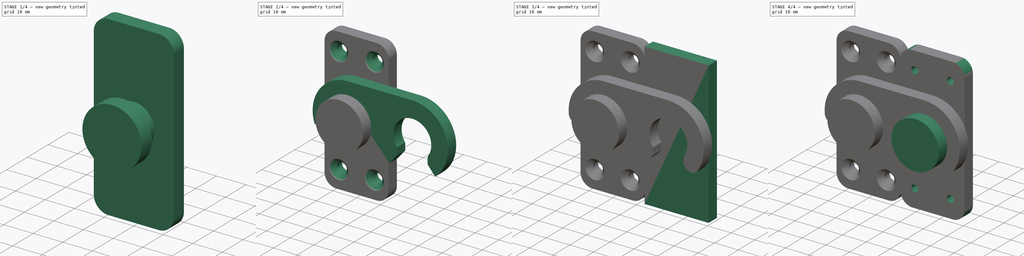
[diagram: build sequence overview — one tinted view per stage of 4, left to right]
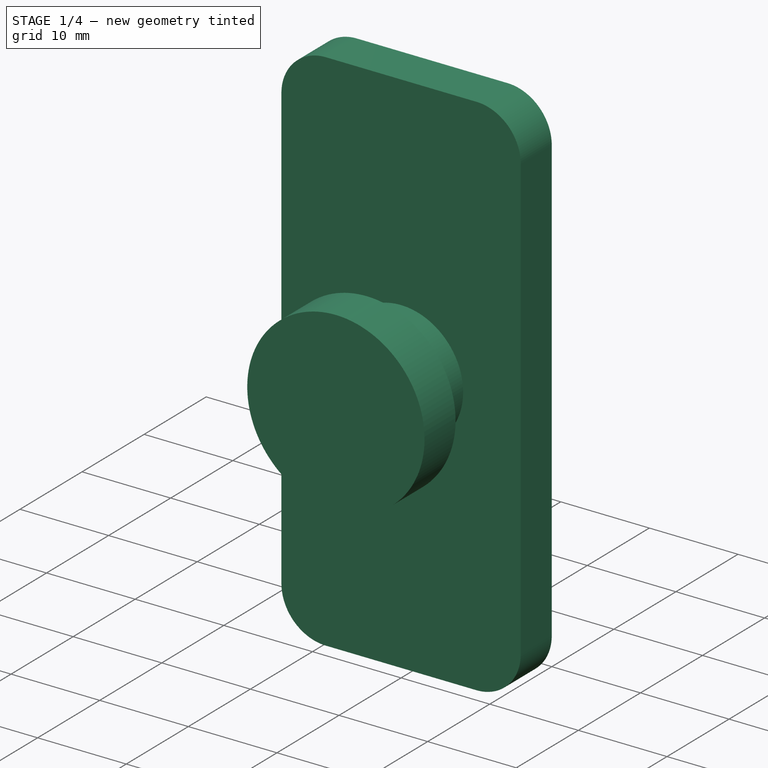
[diagram: stage 1 of 4 — iso view after this stage's code; geometry added in this stage tinted green]
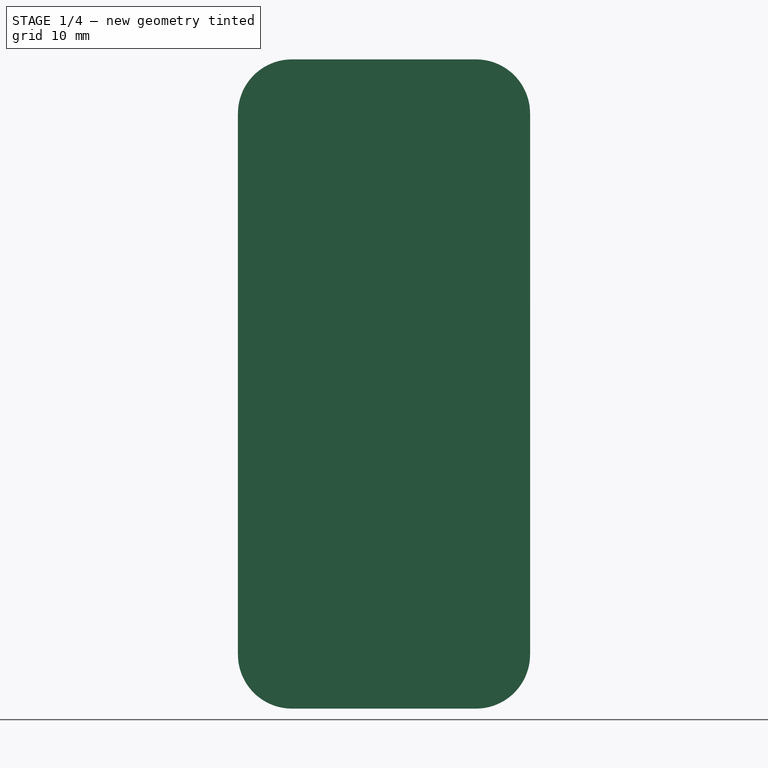
[diagram: stage 1 of 4 — front view after this stage's code; geometry added in this stage tinted green]
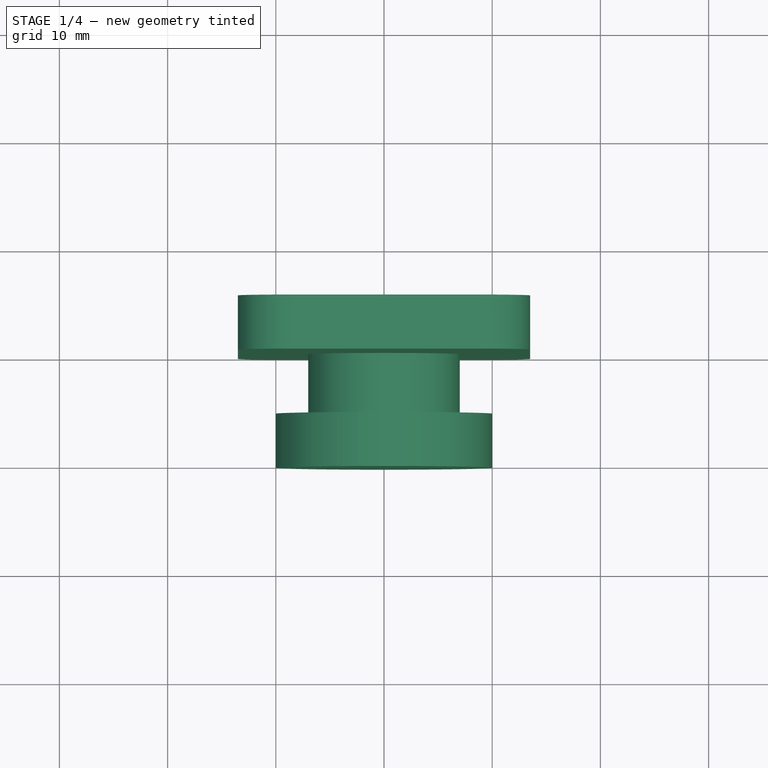
[diagram: stage 1 of 4 — top view after this stage's code; geometry added in this stage tinted green]
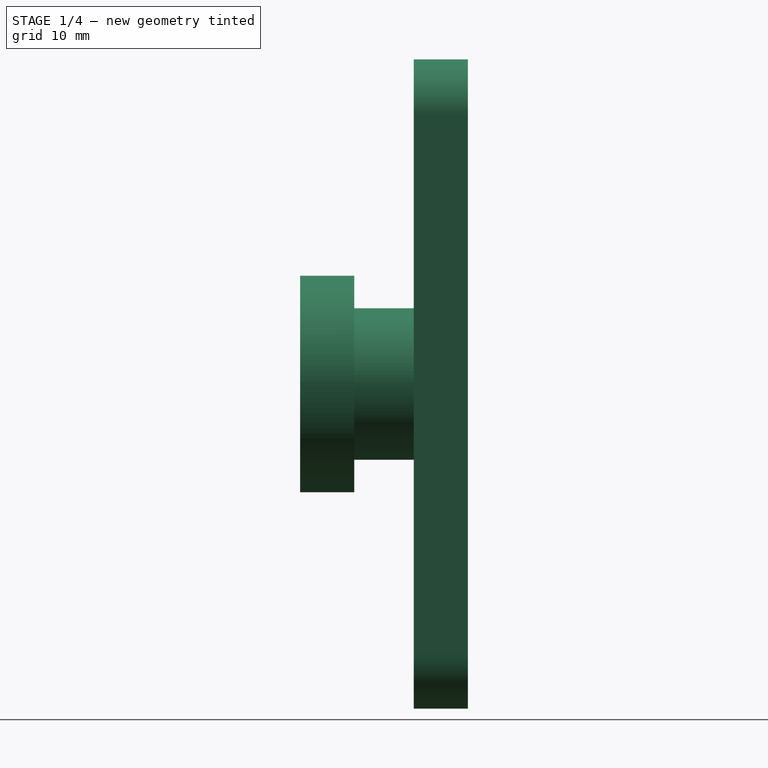
[diagram: stage 1 of 4 — right view after this stage's code; geometry added in this stage tinted green]
FCSTD DOCUMENT  (FreeCAD 0.21R33668 +26 (Git))
Label: printer_chamber_door_lock
License: All rights reserved
LicenseURL: https://en.wikipedia.org/wiki/All_rights_reserved
objects: Sketcher::SketchObject×7, PartDesign::Pad×3, PartDesign::Fillet×3, PartDesign::Body×3, PartDesign::Revolution×2, PartDesign::Pocket×1, PartDesign::Chamfer×1, PartDesign::Hole×1
note: 32 computed .brp shape members not serialized (recipe doc carries the construction recipe); baked Part::Feature solids carry a one-line shape summary decoded from their .brp

FEATURE [Sketcher::SketchObject] Sketch
  FullyConstrained = true
  MapMode = 5
  Placement = pos=(0,0,0) rot=(1,0,0;1.5708rad)
  Support = -> [XZ_Plane]
  sketch-geometry (5):
    g0: LineSegment StartX=-13.5 StartY=-30 StartZ=0 EndX=-13.5 EndY=30 EndZ=0
    g1: LineSegment StartX=-13.5 StartY=30 StartZ=0 EndX=13.5 EndY=30 EndZ=0
    g2: LineSegment StartX=13.5 StartY=30 StartZ=0 EndX=13.5 EndY=-30 EndZ=0
    g3: LineSegment StartX=13.5 StartY=-30 StartZ=0 EndX=-13.5 EndY=-30 EndZ=0
    g4: GeomPoint X=0 Y=0 Z=0
  constraints (12):
    c: Coincident(g0,g1)
    c: Coincident(g1,g2)
    c: Coincident(g2,g3)
    c: Coincident(g3,g0)
    c: Horizontal(g1)
    c: Horizontal(g3)
    c: Vertical(g0)
    c: Vertical(g2)
    c: Symmetric(g1,g0,g4)
    c: Coincident(g4,g-1)
    c: DistanceX(g1,g1) = 27
    c: DistanceY(g2,g2) = 60
FEATURE [PartDesign::Pad] Pad
  Direction = (0,-1,-2e-16)
  Length = 5
  Length2 = 10
  Placement = pos=(0,0,0) rot=(1,0,0;1.5708rad)
  Profile = -> Sketch
  ReferenceAxis = -> Sketch [N_Axis]
  Reversed = true
  Type = 0
FEATURE [Sketcher::SketchObject] Sketch001
  FullyConstrained = true
  MapMode = 5
  Placement = pos=(0,0,0) rot=(1,0,0;1.5708rad)
  Support = -> [XZ_Plane]
  sketch-geometry (4):
    g0: Circle CenterX=-7.5 CenterY=22.5 CenterZ=0 NormalX=0 NormalY=0 NormalZ=1 AngleXU=0 Radius=1.5
    g1: Circle CenterX=7.5 CenterY=22.5 CenterZ=0 NormalX=0 NormalY=0 NormalZ=1 AngleXU=0 Radius=1.5
    g2: Circle CenterX=-7.5 CenterY=-22.5 CenterZ=0 NormalX=0 NormalY=0 NormalZ=1 AngleXU=0 Radius=1.5
    g3: Circle CenterX=7.5 CenterY=-22.5 CenterZ=0 NormalX=0 NormalY=0 NormalZ=1 AngleXU=0 Radius=1.5
  constraints (10):
    c: Symmetric(g0,g2,g-1)
    c: Vertical(g1,g3)
    c: Horizontal(g3,g2)
    c: Equal(g0,g1)
    c: Equal(g1,g3)
    c: Equal(g3,g2)
    c: Diameter(g0) = 3
    c: DistanceX(g0,g1) = 15
    c: DistanceY(g2,g0) = 45
    c: Symmetric(g1,g0,g-2)
FEATURE [Sketcher::SketchObject] Sketch002
  FullyConstrained = true
  MapMode = 5
  Placement = pos=(0,0,0) rot=(0.57735,0.57735,0.57735;2.0944rad)
  Support = -> [YZ_Plane]
  sketch-geometry (6):
    g0: LineSegment StartX=0 StartY=-7 StartZ=0 EndX=-5.5 EndY=-7 EndZ=0
    g1: LineSegment StartX=-5.5 StartY=-7 StartZ=0 EndX=-5.5 EndY=-10 EndZ=0
    g2: LineSegment StartX=-5.5 StartY=-10 StartZ=0 EndX=-10.5 EndY=-10 EndZ=0
    g3: LineSegment StartX=-10.5 StartY=-10 StartZ=0 EndX=-10.5 EndY=0 EndZ=0
    g4: LineSegment StartX=0 StartY=-7 StartZ=0 EndX=0 EndY=0 EndZ=0
    g5: LineSegment StartX=-10.5 StartY=0 StartZ=0 EndX=0 EndY=0 EndZ=0
  constraints (18):
    c: PointOnObject(g0,g-2)
    c: Horizontal(g0)
    c: Coincident(g2,g1)
    c: Coincident(g3,g2)
    c: Vertical(g3)
    c: PointOnObject(g3,g-1)
    c: Coincident(g1,g0)
    c: Vertical(g1)
    c: Horizontal(g2)
    c: DistanceY(g0,g-1) = 7
    c: DistanceY(g3,g3) = 10
    c: DistanceX(g0,g0) = 5.5
    c: DistanceX(g2,g2) = 5
    c: Coincident(g4,g0)
    c: Coincident(g4,g-1)
    c: Coincident(g5,g3)
    c: PointOnObject(g5,g4)
    c: Horizontal(g5)
FEATURE [PartDesign::Revolution] Revolution
  Angle = 360
  Axis = (3e-16,1,-2e-16)
  Base = (0,0,0)
  BaseFeature = -> Pad
  Placement = pos=(0,0,0) rot=(1,0,0;1.5708rad)
  Profile = -> Sketch002
  ReferenceAxis = -> Sketch002 [H_Axis]
  Reversed = true
FEATURE [PartDesign::Fillet] Fillet
  Base = -> Revolution [Edge2,Edge8,Edge1,Edge5]
  BaseFeature = -> Revolution
  Placement = pos=(0,0,0) rot=(1,0,0;1.5708rad)
  Radius = 5
  SupportTransform = false
  UseAllEdges = false
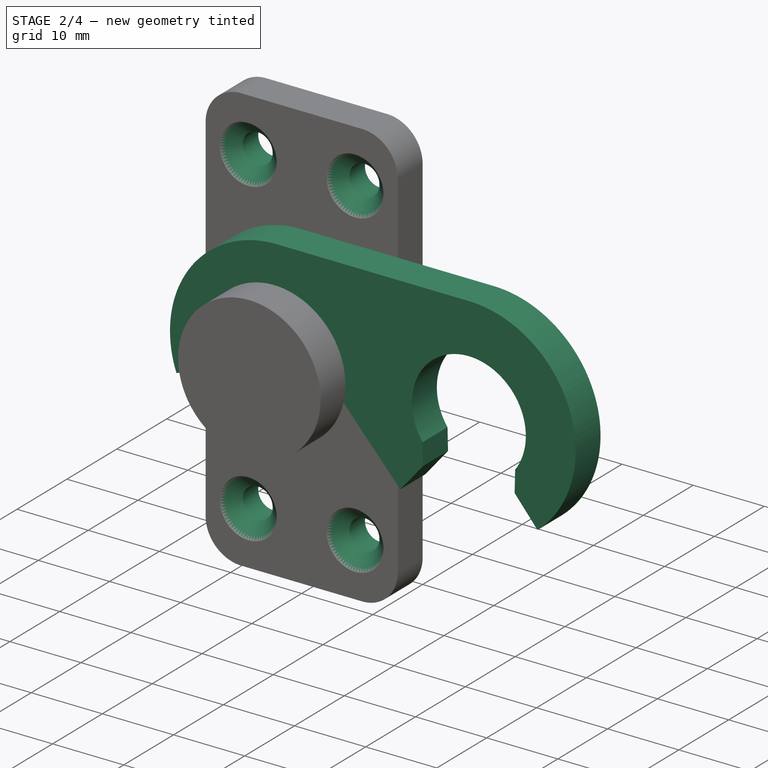
[diagram: stage 2 of 4 — iso view after this stage's code; geometry added in this stage tinted green]
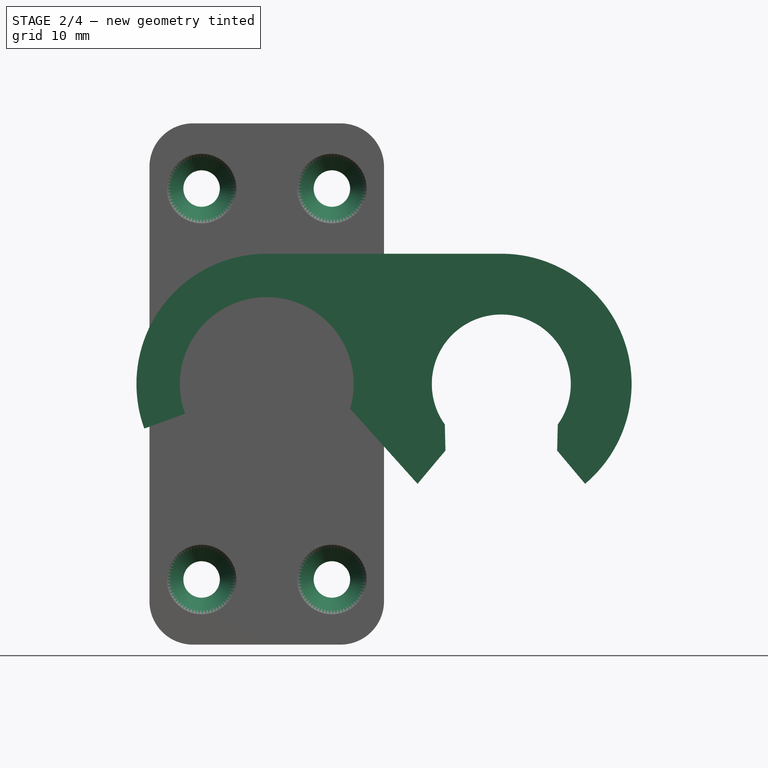
[diagram: stage 2 of 4 — front view after this stage's code; geometry added in this stage tinted green]
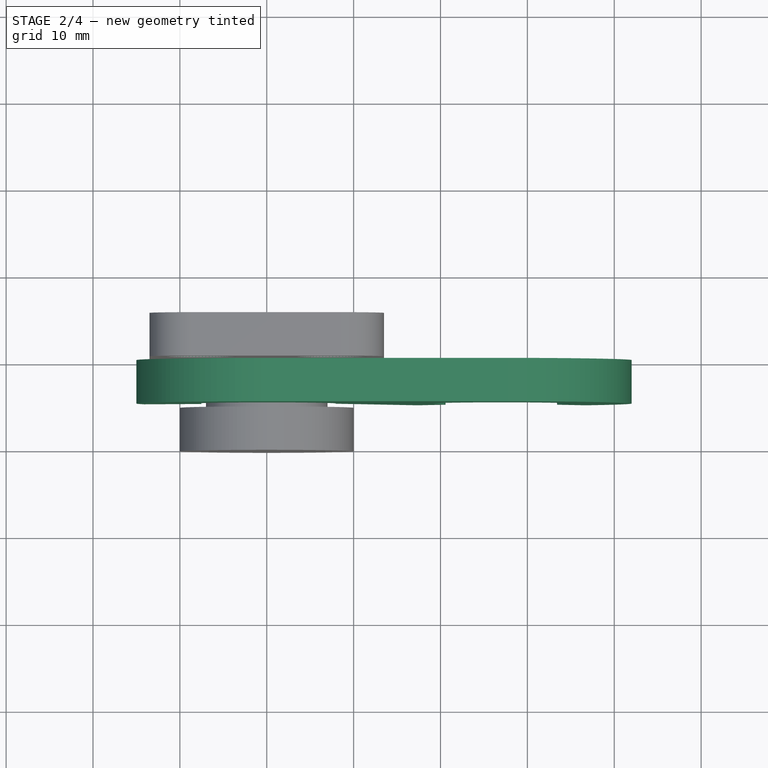
[diagram: stage 2 of 4 — top view after this stage's code; geometry added in this stage tinted green]
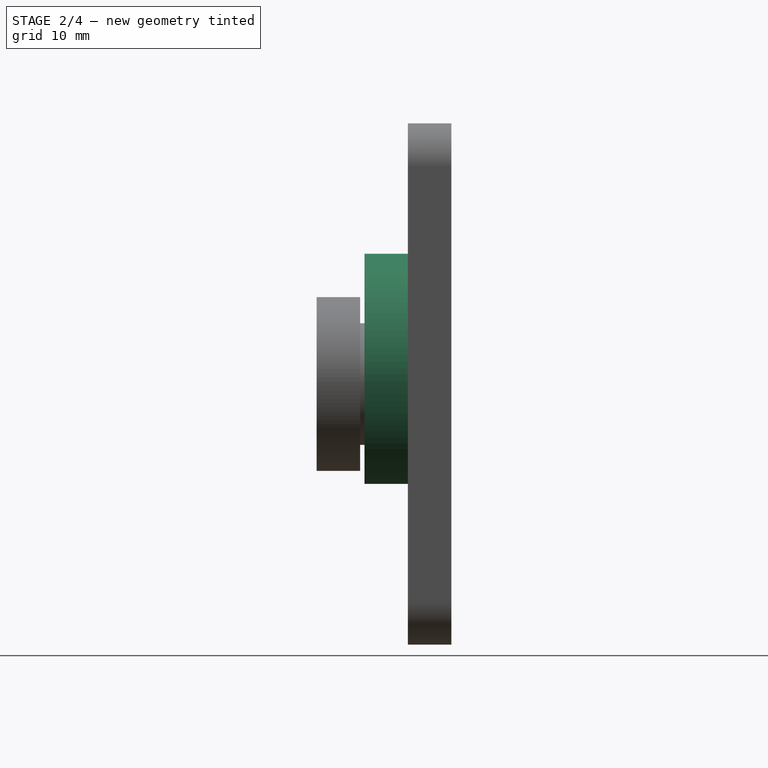
[diagram: stage 2 of 4 — right view after this stage's code; geometry added in this stage tinted green]
FEATURE [PartDesign::Body] Body001
  Group = -> [Sketch003,Pad001,Sketch004,Pocket001,Sketch005,Revolution001,Fillet001]
  Origin = -> Origin001
  Tip = -> Fillet001
FEATURE [Sketcher::SketchObject] Sketch006
  FullyConstrained = true
  MapMode = 5
  Placement = pos=(0,0,0) rot=(1,0,0;1.5708rad)
  Support = -> [XZ_Plane002]
  sketch-geometry (10):
    g0: ArcOfCircle CenterX=0 CenterY=0 CenterZ=0 NormalX=0 NormalY=0 NormalZ=1 AngleXU=0 Radius=8 StartAngle=6.15786 EndAngle=9.77384
    g1: ArcOfCircle CenterX=27 CenterY=-6e-16 CenterZ=0 NormalX=0 NormalY=0 NormalZ=1 AngleXU=0 Radius=8 StartAngle=5.41052 EndAngle=10.2974
    g2: ArcOfCircle CenterX=27 CenterY=-6e-16 CenterZ=0 NormalX=0 NormalY=0 NormalZ=1 AngleXU=0 Radius=15 StartAngle=5.41052 EndAngle=7.85398
    g3: ArcOfCircle CenterX=0 CenterY=0 CenterZ=0 NormalX=0 NormalY=0 NormalZ=1 AngleXU=0 Radius=15 StartAngle=1.5708 EndAngle=3.49066
    g4: LineSegment StartX=-1.8e-15 StartY=15 StartZ=0 EndX=27 EndY=15 EndZ=0
    g5: LineSegment StartX=7.93725 StartY=-1 StartZ=0 EndX=17.3582 EndY=-11.4907 EndZ=0
    g6: LineSegment StartX=32.1423 StartY=-6.12836 StartZ=0 EndX=36.6418 EndY=-11.4907 EndZ=0
    g7: LineSegment StartX=21.8577 StartY=-6.12836 StartZ=0 EndX=17.3582 EndY=-11.4907 EndZ=0
    g8: LineSegment StartX=-7.51754 StartY=-2.73616 StartZ=0 EndX=-14.0954 EndY=-5.1303 EndZ=0
    g9: LineSegment StartX=27 StartY=-6e-16 StartZ=0 EndX=27 EndY=-11.4907 EndZ=0
  constraints (28):
    c: Coincident(g0,g-1)
    c: DistanceX(g0,g1) = 27
    c: Diameter(g1) = 16
    c: Diameter(g0) = 16
    c: Coincident(g2,g1)
    c: Coincident(g3,g0)
    c: Equal(g3,g2)
    c: Horizontal(g4)
    c: Diameter(g2) = 30
    c: DistanceY(g5,g-1) = 1
    c: Angle(g7,g6) = 1.39626
    c: Angle(g-2,g8) = 1.91986
    c: Coincident(g2,g6)
    c: Coincident(g6,g1)
    c: Coincident(g7,g1)
    c: Coincident(g3,g8)
    c: Coincident(g8,g0)
    c: Coincident(g5,g0)
    c: Perpendicular(g0,g8)
    c: Perpendicular(g1,g6)
    c: Perpendicular(g1,g7)
    c: Tangent(g2,g4) = 1.5708
    c: Tangent(g3,g4) = 1.5708
    c: Coincident(g7,g5)
    c: Coincident(g9,g1)
    c: Vertical(g9)
    c: Symmetric(g2,g5,g9)
    c: Horizontal(g9,g2)
FEATURE [PartDesign::Pad] Pad002
  Direction = (0,-1,2e-16)
  Length = 5
  Length2 = 10
  Placement = pos=(0,0,0) rot=(1,0,0;1.5708rad)
  Profile = -> Sketch006
  ReferenceAxis = -> Sketch006 [N_Axis]
  Type = 0
FEATURE [PartDesign::Chamfer] Chamfer
  Angle = 45
  Base = -> Pad002 [Edge2,Edge1]
  BaseFeature = -> Pad002
  ChamferType = 0
  FlipDirection = false
  Placement = pos=(0,0,0) rot=(1,0,0;1.5708rad)
  Size = 2
  Size2 = 1
  SupportTransform = false
  UseAllEdges = false
FEATURE [PartDesign::Body] Body002
  Group = -> [Sketch006,Pad002,Chamfer,Fillet002]
  Origin = -> Origin002
  Tip = -> Fillet002
FEATURE [PartDesign::Hole] Hole
  BaseFeature = -> Fillet
  CustomThreadClearance = 0
  Depth = 25
  DepthType = 0
  Diameter = 4.2
  DrillForDepth = false
  DrillPoint = 1
  DrillPointAngle = 118
  HoleCutCountersinkAngle = 90
  HoleCutCustomValues = false
  HoleCutDepth = 3
  HoleCutDiameter = 8
  HoleCutType = 2
  ModelThread = false
  Placement = pos=(0,0,0) rot=(1,0,0;1.5708rad)
  Profile = -> Sketch001
  Tapered = false
  TaperedAngle = 90
  ThreadClass = 0
  ThreadDepth = 25
  ThreadDepthType = 0
  ThreadDirection = 0
  ThreadFit = 0
  ThreadSize = 0
  ThreadType = 0
  Threaded = false
  UseCustomThreadClearance = false
FEATURE [PartDesign::Body] Body
  Group = -> [Sketch,Pad,Sketch001,Sketch002,Revolution,Fillet,Hole]
  Origin = -> Origin
  Tip = -> Hole
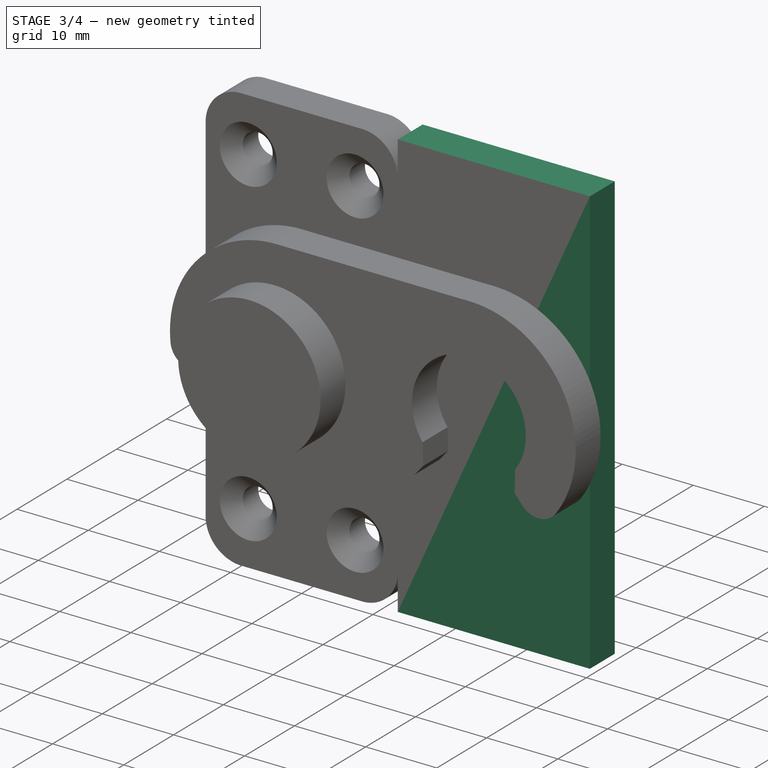
[diagram: stage 3 of 4 — iso view after this stage's code; geometry added in this stage tinted green]
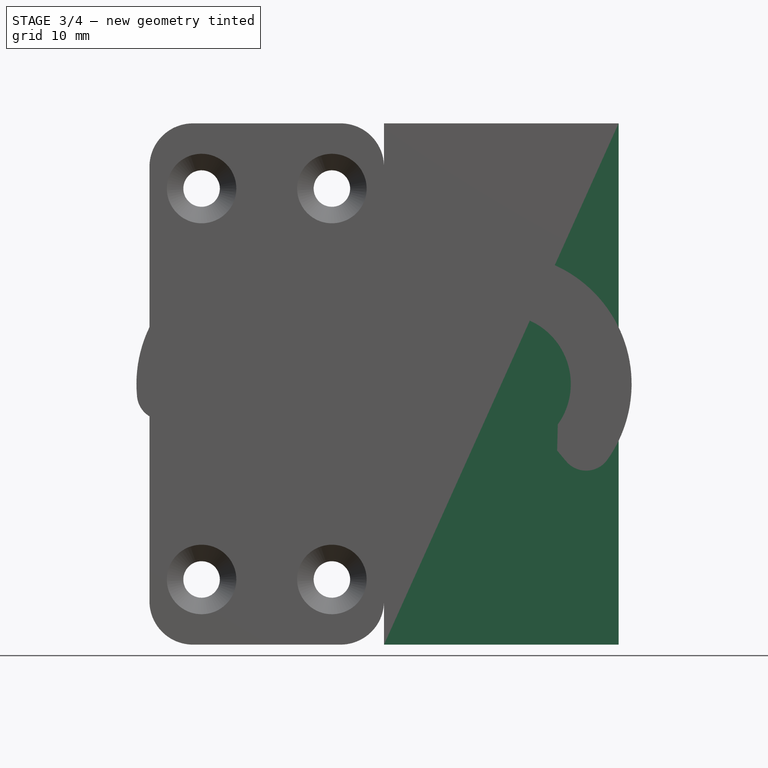
[diagram: stage 3 of 4 — front view after this stage's code; geometry added in this stage tinted green]
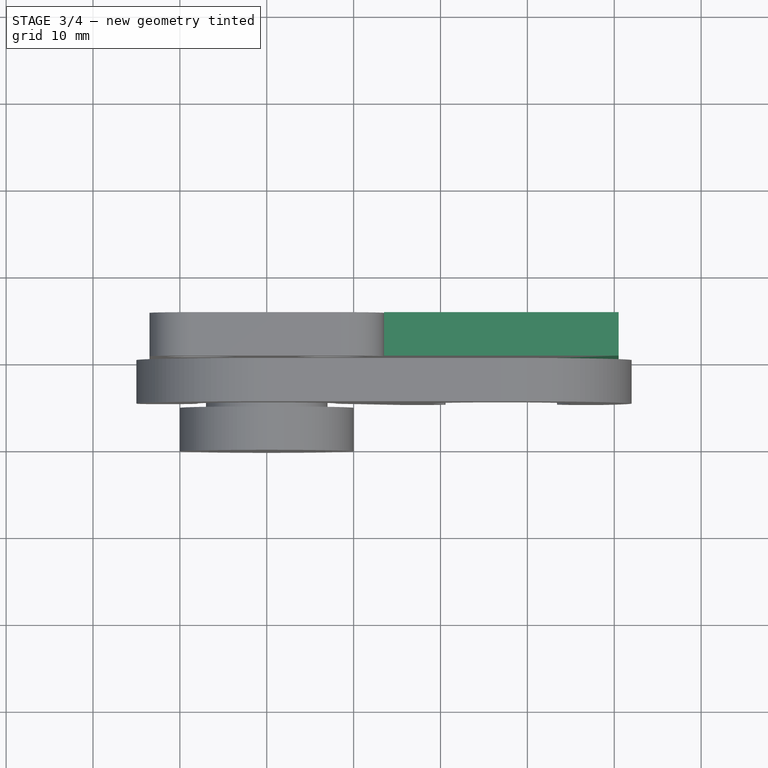
[diagram: stage 3 of 4 — top view after this stage's code; geometry added in this stage tinted green]
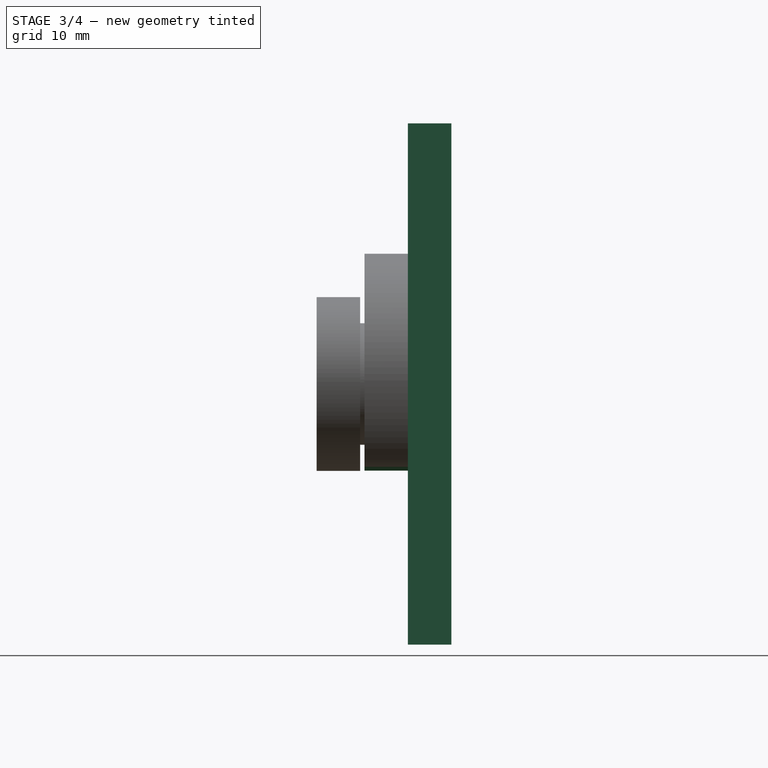
[diagram: stage 3 of 4 — right view after this stage's code; geometry added in this stage tinted green]
FEATURE [Sketcher::SketchObject] Sketch003
  FullyConstrained = true
  MapMode = 5
  Placement = pos=(0,0,0) rot=(1,0,0;1.5708rad)
  Support = -> [XZ_Plane001]
  sketch-geometry (5):
    g0: LineSegment StartX=13.5 StartY=-30 StartZ=0 EndX=13.5 EndY=30 EndZ=0
    g1: LineSegment StartX=13.5 StartY=30 StartZ=0 EndX=40.5 EndY=30 EndZ=0
    g2: LineSegment StartX=40.5 StartY=30 StartZ=0 EndX=40.5 EndY=-30 EndZ=0
    g3: LineSegment StartX=40.5 StartY=-30 StartZ=0 EndX=13.5 EndY=-30 EndZ=0
    g4: GeomPoint X=27 Y=0 Z=0
  constraints (13):
    c: Coincident(g0,g1)
    c: Coincident(g1,g2)
    c: Coincident(g2,g3)
    c: Coincident(g3,g0)
    c: Horizontal(g1)
    c: Horizontal(g3)
    c: Vertical(g0)
    c: Vertical(g2)
    c: Symmetric(g1,g0,g4)
    c: PointOnObject(g4,g-1)
    c: DistanceX(g-1,g0) = 13.5
    c: DistanceY(g2,g2) = 60
    c: DistanceX(g1,g1) = 27
FEATURE [PartDesign::Pad] Pad001
  Direction = (0,-1,2e-16)
  Length = 5
  Length2 = 10
  Placement = pos=(0,0,0) rot=(1,0,0;1.5708rad)
  Profile = -> Sketch003
  ReferenceAxis = -> Sketch003 [N_Axis]
  Reversed = true
  Type = 0
FEATURE [PartDesign::Fillet] Fillet002
  Base = -> Chamfer [Edge28,Edge33,Edge32,Edge27,Edge30]
  BaseFeature = -> Chamfer
  Placement = pos=(0,0,0) rot=(1,0,0;1.5708rad)
  Radius = 3
  SupportTransform = false
  UseAllEdges = false
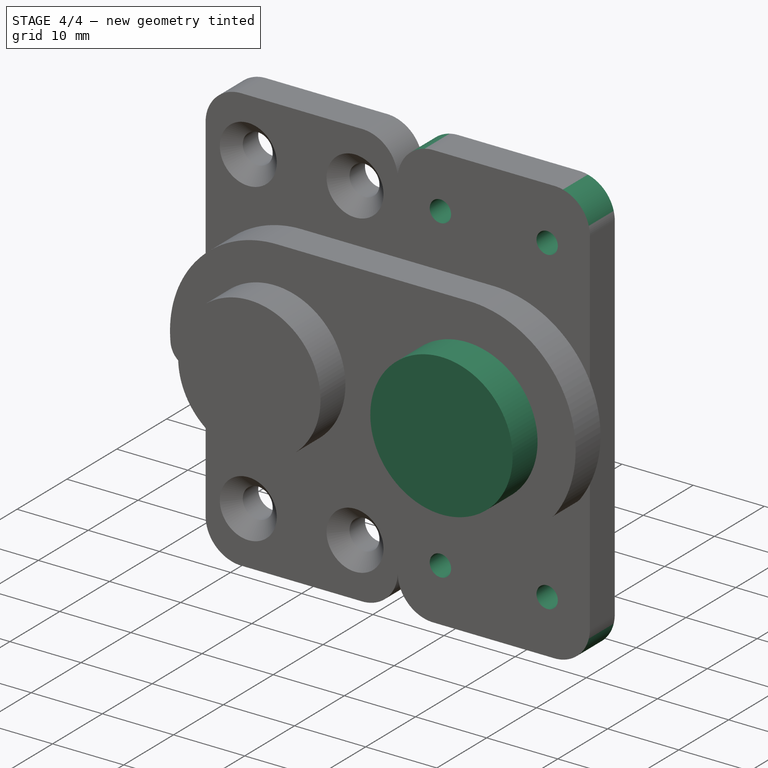
[diagram: stage 4 of 4 — iso view after this stage's code; geometry added in this stage tinted green]
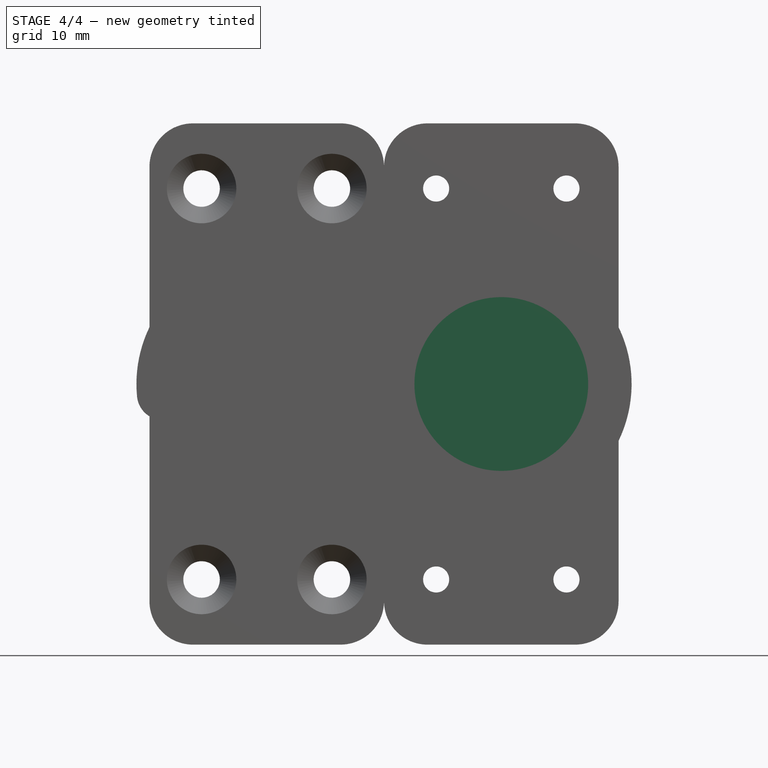
[diagram: stage 4 of 4 — front view after this stage's code; geometry added in this stage tinted green]
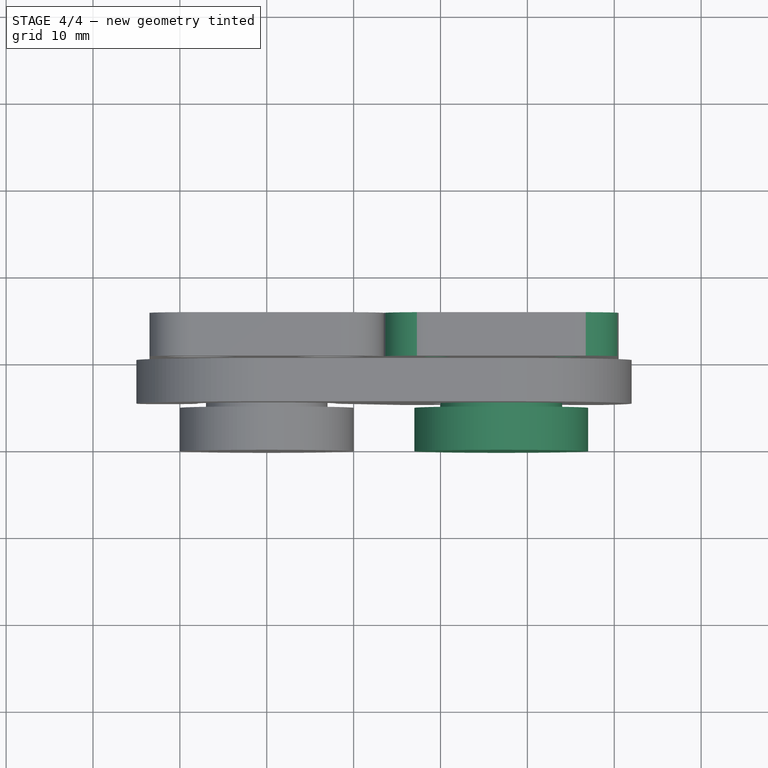
[diagram: stage 4 of 4 — top view after this stage's code; geometry added in this stage tinted green]
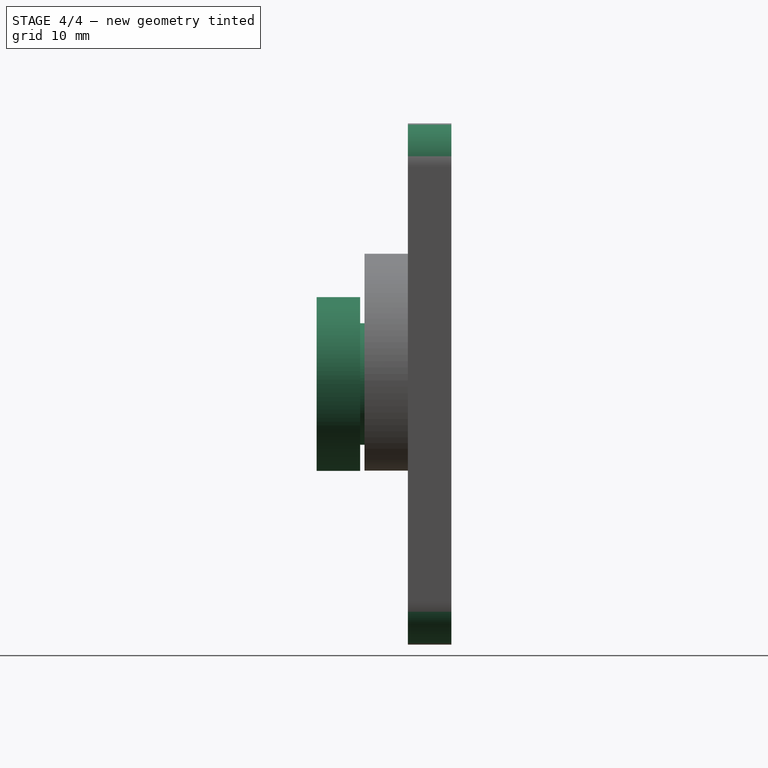
[diagram: stage 4 of 4 — right view after this stage's code; geometry added in this stage tinted green]
FEATURE [Sketcher::SketchObject] Sketch004
  FullyConstrained = true
  MapMode = 5
  Placement = pos=(0,0,0) rot=(1,0,0;1.5708rad)
  Support = -> [XZ_Plane001]
  sketch-geometry (5):
    g0: Circle CenterX=19.5 CenterY=22.5 CenterZ=0 NormalX=0 NormalY=0 NormalZ=1 AngleXU=0 Radius=1.5
    g1: Circle CenterX=34.5 CenterY=22.5 CenterZ=0 NormalX=0 NormalY=0 NormalZ=1 AngleXU=0 Radius=1.5
    g2: Circle CenterX=19.5 CenterY=-22.5 CenterZ=0 NormalX=0 NormalY=0 NormalZ=1 AngleXU=0 Radius=1.5
    g3: Circle CenterX=34.5 CenterY=-22.5 CenterZ=0 NormalX=0 NormalY=0 NormalZ=1 AngleXU=0 Radius=1.5
    g4: LineSegment StartX=27 StartY=30 StartZ=0 EndX=27 EndY=-30 EndZ=0
  constraints (13):
    c: DistanceX(g-1,g4) = 27
    c: Symmetric(g4,g4,g-1)
    c: DistanceY(g4,g4) = 60
    c: Symmetric(g1,g0,g4)
    c: Symmetric(g0,g2,g-1)
    c: Horizontal(g2,g3)
    c: Vertical(g1,g3)
    c: Equal(g0,g1)
    c: Equal(g1,g3)
    c: Equal(g3,g2)
    c: Diameter(g0) = 3
    c: DistanceY(g2,g0) = 45
    c: DistanceX(g0,g1) = 15
FEATURE [PartDesign::Pocket] Pocket001
  BaseFeature = -> Pad001
  Direction = (0,1,-2e-16)
  Length = 5
  Length2 = 5
  Placement = pos=(0,0,0) rot=(1,0,0;1.5708rad)
  Profile = -> Sketch004
  ReferenceAxis = -> Sketch004 [N_Axis]
  Type = 0
FEATURE [Sketcher::SketchObject] Sketch005
  FullyConstrained = true
  MapMode = 5
  Support = -> [XY_Plane001]
  sketch-geometry (6):
    g0: LineSegment StartX=27 StartY=0 StartZ=0 EndX=27 EndY=-10.5 EndZ=0
    g1: LineSegment StartX=27 StartY=-10.5 StartZ=0 EndX=37 EndY=-10.5 EndZ=0
    g2: LineSegment StartX=37 StartY=-10.5 StartZ=0 EndX=37 EndY=-5.5 EndZ=0
    g3: LineSegment StartX=37 StartY=-5.5 StartZ=0 EndX=34 EndY=-5.5 EndZ=0
    g4: LineSegment StartX=34 StartY=-5.5 StartZ=0 EndX=34 EndY=0 EndZ=0
    g5: LineSegment StartX=34 StartY=0 StartZ=0 EndX=27 EndY=0 EndZ=0
  constraints (18):
    c: Coincident(g1,g0)
    c: Horizontal(g1)
    c: Coincident(g2,g1)
    c: Vertical(g2)
    c: Coincident(g3,g2)
    c: Horizontal(g3)
    c: Coincident(g4,g3)
    c: PointOnObject(g4,g-1)
    c: Vertical(g4)
    c: Coincident(g5,g4)
    c: Coincident(g5,g0)
    c: DistanceX(g5,g5) = 7
    c: DistanceX(g1,g1) = 10
    c: DistanceY(g2,g2) = 5
    c: DistanceY(g4,g4) = 5.5
    c: Vertical(g0)
    c: DistanceX(g-1,g0) = 27
    c: Horizontal(g5)
FEATURE [PartDesign::Revolution] Revolution001
  Angle = 360
  Axis = (0,-1,0)
  Base = (27,0,0)
  BaseFeature = -> Pocket001
  Placement = pos=(0,0,0) rot=(1,0,0;1.5708rad)
  Profile = -> Sketch005
  ReferenceAxis = -> Sketch005 [Edge1]
  Reversed = true
FEATURE [PartDesign::Fillet] Fillet001
  Base = -> Revolution001 [Edge2,Edge8,Edge5,Edge1]
  BaseFeature = -> Revolution001
  Placement = pos=(0,0,0) rot=(1,0,0;1.5708rad)
  Radius = 5
  SupportTransform = false
  UseAllEdges = false
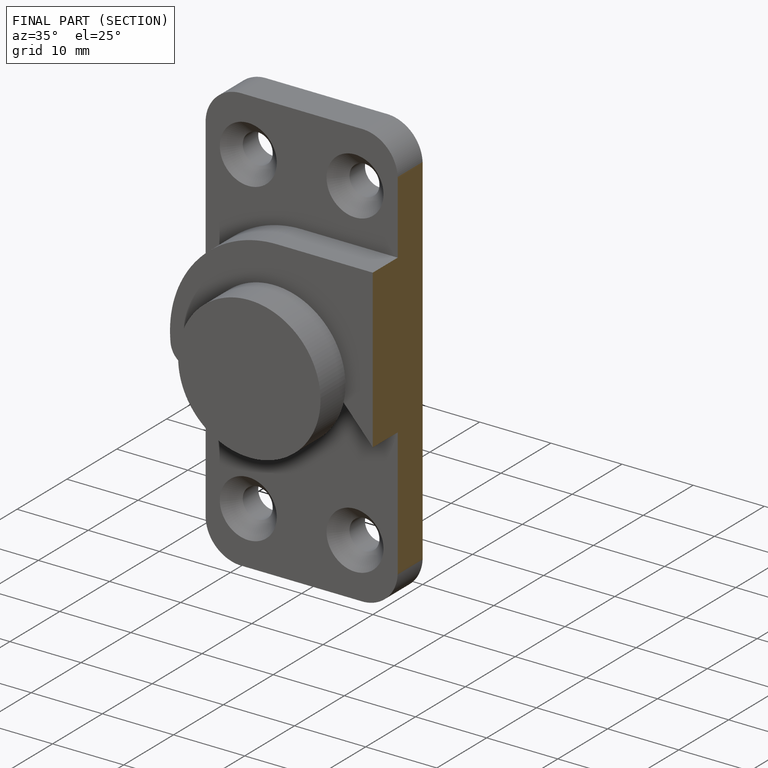
[diagram: finished part — half-section view (interior)]
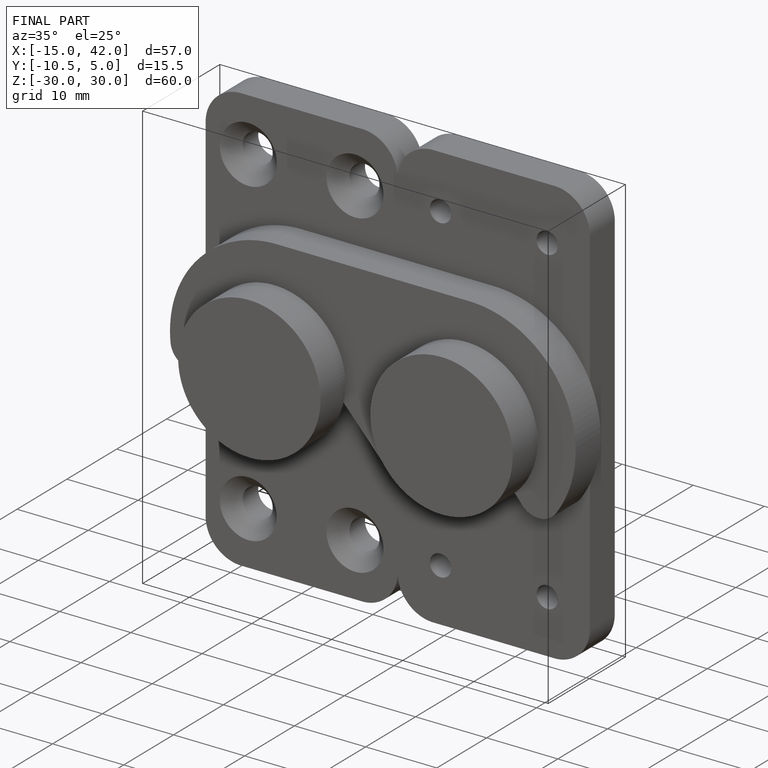
[diagram: finished part — iso view with bounding-box wireframe]
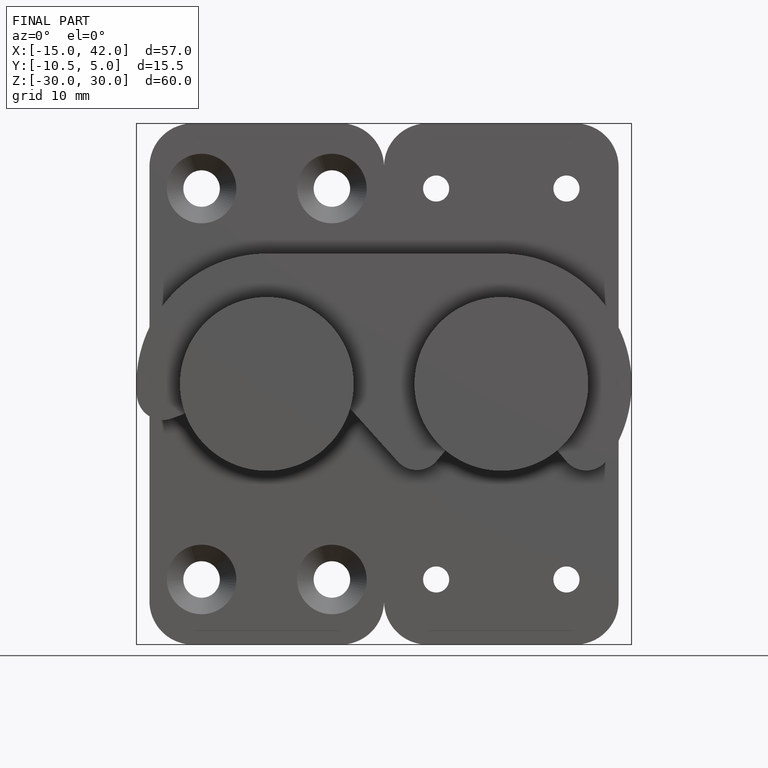
[diagram: finished part — front view with bounding-box wireframe]
